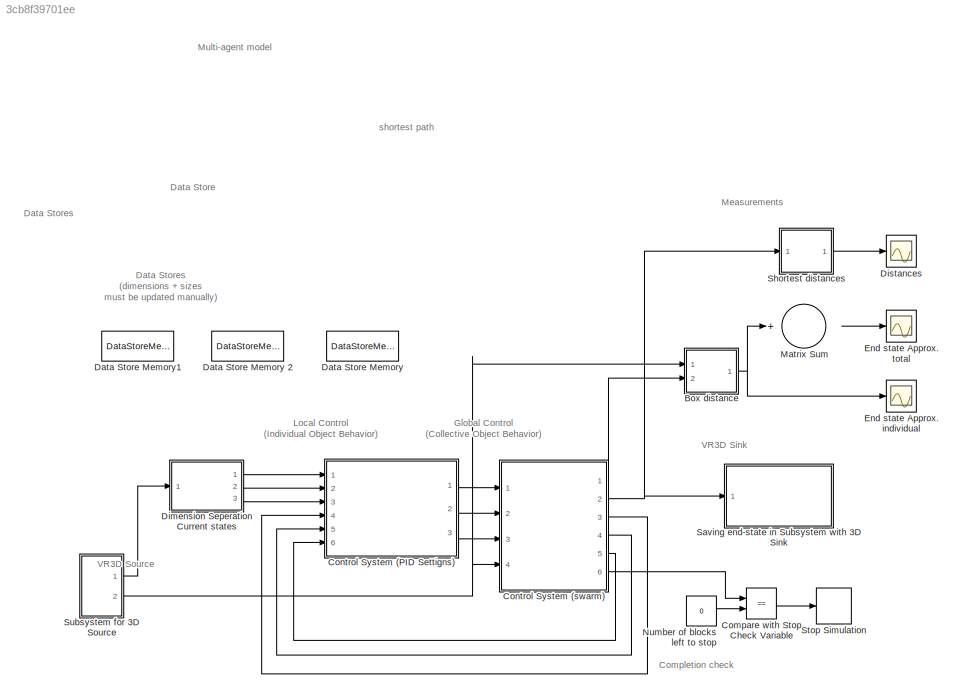
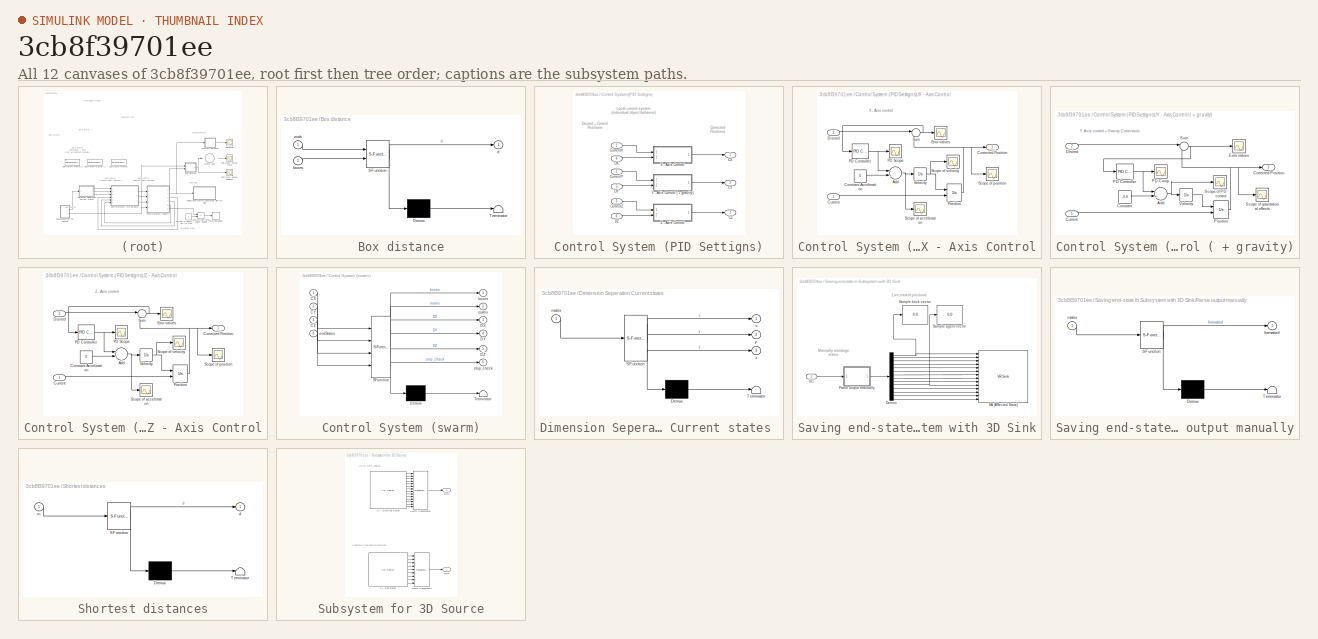
[diagram: thumbnail index - all 12 canvases of the model, root first then tree order]
MODEL slx_3cb8f39701ee
KIND model
CONFIG AbsTol = auto
CONFIG FixedStep = auto
CONFIG MaxStep = auto
CONFIG MinStep = auto
CONFIG RelTol = 1e-3
CONFIG SampleTimeConstraint = Unconstrained
CONFIG Solver = VariableStepAuto
CONFIG SolverMode = Auto
CONFIG SolverName = VariableStepAuto
CONFIG StartTime = 0.0
CONFIG StopTime = 400
WORKSPACE source: MAT-file member
WORKSPACE MCOS: class17 (value not decoded)
BLOCK [SubSystem] Box distance
  ErrorFcn = Stateflow.Translate.translate
  PermitHierarchicalResolution = ExplicitOnly
  Ports = [2, 1]
  RequestExecContextInheritance = off
  SFBlockType = MATLAB Function
  TreatAsAtomicUnit = on
  Variant = off
BLOCK [Demux] Box distance/ Demux 
  Outputs = 1
  Ports = [1, 1]
BLOCK [S-Function] Box distance/ SFunction 
  EnableBusSupport = on
  FunctionName = sf_sfun
  PortCounts = [2 2]
  Ports = [2, 2]
  SFunctionDeploymentMode = off
  Tag = Stateflow S-Function multi_agent_setup 1
BLOCK [Terminator] Box distance/ Terminator 
BLOCK [Inport] Box distance/boxes
  IconDisplay = Port number
  Port = 2
BLOCK [Outport] Box distance/d
  IconDisplay = Port number
BLOCK [Inport] Box distance/ends
  IconDisplay = Port number
BLOCK [RelationalOperator] Compare with Stop Check Variable
  InputSameDT = off
  Operator = ==
  OutDataTypeStr = boolean
  Ports = [2, 1]
BLOCK [SubSystem] Control System (PID Settigns)
  Ports = [6, 3]
  RequestExecContextInheritance = off
  Variant = off
BLOCK [Outport] Control System (PID Settigns)/CX
  IconDisplay = Port number
BLOCK [Outport] Control System (PID Settigns)/CY
  IconDisplay = Port number
  Port = 2
BLOCK [Outport] Control System (PID Settigns)/CZ
  IconDisplay = Port number
  Port = 3
BLOCK [Inport] Control System (PID Settigns)/CurrentX
  IconDisplay = Port number
BLOCK [Inport] Control System (PID Settigns)/CurrentY
  IconDisplay = Port number
  Port = 2
BLOCK [Inport] Control System (PID Settigns)/CurrentZ
  IconDisplay = Port number
  Port = 3
BLOCK [Inport] Control System (PID Settigns)/DX
  IconDisplay = Port number
  Port = 4
BLOCK [Inport] Control System (PID Settigns)/DY
  IconDisplay = Port number
  Port = 5
BLOCK [Inport] Control System (PID Settigns)/DZ
  IconDisplay = Port number
  Port = 6
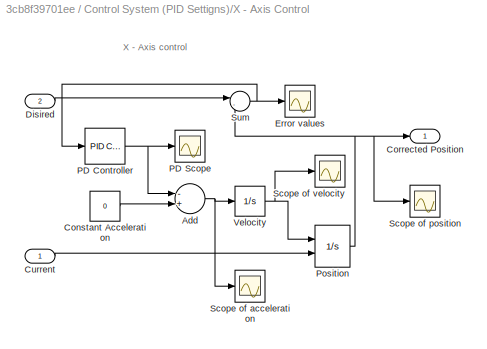
BLOCK [SubSystem] Control System (PID Settigns)/X - Axis Control
  Ports = [2, 1]
  RequestExecContextInheritance = off
  Variant = off
BLOCK [Sum] Control System (PID Settigns)/X - Axis Control/Add
  InputSameDT = off
  Inputs = -+
  OutDataTypeStr = Inherit: Inherit via internal rule
  OutMax = 5
  OutMin = -5
  Ports = [2, 1]
  SaturateOnIntegerOverflow = off
BLOCK [Constant] Control System (PID Settigns)/X - Axis Control/Constant Acceleration
  Value = 0
BLOCK [Outport] Control System (PID Settigns)/X - Axis Control/Corrected Position
  IconDisplay = Port number
BLOCK [Inport] Control System (PID Settigns)/X - Axis Control/Current
  IconDisplay = Port number
BLOCK [Inport] Control System (PID Settigns)/X - Axis Control/Disired
  IconDisplay = Port number
  Port = 2
BLOCK [Scope] Control System (PID Settigns)/X - Axis Control/Error values
  Ports = [1]
  ScopeSpecificationString = Simulink.scopes.TimeScopeBlockCfg('CurrentConfiguration', extmgr.ConfigurationSet(extmgr.Configuration('Core','General UI',true),extmgr.Configuration('Core','Source UI',true),extmgr.Configuration('Sources','WiredSimulink',true,'DataLoggingVariableName','ScopeData3'),extmgr.Configuration('Visuals','Time Domain',true,'SerializedDisplays',{struct('MinYLimReal','-24.375','MaxYLimReal','19.375','YLabel...<+1598ch>  <repeated x3 — deduplicated; at blocks: Error values>
BLOCK [Reference] Control System (PID Settigns)/X - Axis Control/PD Controller  REF=simulink/Continuous/PID Controller
  Ports = [1, 1]
  SourceBlock = simulink/Continuous/PID Controller
  SourceType = PID 1dof
BLOCK [Scope] Control System (PID Settigns)/X - Axis Control/PD Scope
  Ports = [1]
  ScopeSpecificationString = Simulink.scopes.TimeScopeBlockCfg('CurrentConfiguration', extmgr.ConfigurationSet(extmgr.Configuration('Core','General UI',true,'FigureColor',[1 1 1]),extmgr.Configuration('Core','Source UI',true),extmgr.Configuration('Sources','WiredSimulink',true,'DataLoggingVariableName','ScopeData3'),extmgr.Configuration('Visuals','Time Domain',true,'SerializedDisplays',{struct('MinYLimReal','-62.5','MaxYLimRe...<+3142ch>
BLOCK [Integrator] Control System (PID Settigns)/X - Axis Control/Position
  InitialConditionSource = external
  LowerSaturationLimit = 0
  Ports = [2, 1]
BLOCK [Scope] Control System (PID Settigns)/X - Axis Control/Scope of acceleration
  Ports = [1]
  ScopeSpecificationString = Simulink.scopes.TimeScopeBlockCfg('CurrentConfiguration', extmgr.ConfigurationSet(extmgr.Configuration('Core','General UI',true,'FigureColor',[1 1 1]),extmgr.Configuration('Core','Source UI',true),extmgr.Configuration('Sources','WiredSimulink',true,'DataLoggingVariableName','ScopeData2'),extmgr.Configuration('Visuals','Time Domain',true,'SerializedDisplays',{struct('MinYLimReal','-25.00000','MaxYL...<+3066ch>
BLOCK [Scope] Control System (PID Settigns)/X - Axis Control/Scope of position
  Ports = [1]
  ScopeSpecificationString = Simulink.scopes.TimeScopeBlockCfg('CurrentConfiguration', extmgr.ConfigurationSet(extmgr.Configuration('Core','General UI',true),extmgr.Configuration('Core','Source UI',true),extmgr.Configuration('Sources','WiredSimulink',true,'DataLoggingVariableName','ScopeData5'),extmgr.Configuration('Visuals','Time Domain',true,'SerializedDisplays',{struct('MinYLimReal','-141.20216','MaxYLimReal','135.48129','...<+1619ch>
BLOCK [Scope] Control System (PID Settigns)/X - Axis Control/Scope of velocity
  Ports = [1]
  ScopeSpecificationString = Simulink.scopes.TimeScopeBlockCfg('CurrentConfiguration', extmgr.ConfigurationSet(extmgr.Configuration('Core','General UI',true),extmgr.Configuration('Core','Source UI',true),extmgr.Configuration('Sources','WiredSimulink',true,'DataLoggingVariableName','ScopeData1'),extmgr.Configuration('Visuals','Time Domain',true,'SerializedDisplays',{struct('MinYLimReal','-18.75','MaxYLimReal','18.75','YLabelRe...<+1586ch>
BLOCK [Sum] Control System (PID Settigns)/X - Axis Control/Sum
  IconShape = round
  InputSameDT = off
  Inputs = |-+
  OutDataTypeStr = Inherit: Inherit via internal rule
  Ports = [2, 1]
  SaturateOnIntegerOverflow = off
BLOCK [Integrator] Control System (PID Settigns)/X - Axis Control/Velocity
  LimitOutput = on
  LowerSaturationLimit = -15
  Ports = [1, 1]
  UpperSaturationLimit = 15
BLOCK [SubSystem] Control System (PID Settigns)/Y - Axis Control ( + gravity)
  Ports = [2, 1]
  RequestExecContextInheritance = off
  Variant = off
BLOCK [Sum] Control System (PID Settigns)/Y - Axis Control ( + gravity)/Add
  InputSameDT = off
  Inputs = -+
  OutDataTypeStr = Inherit: Inherit via internal rule
  OutMin = [-9.8]
  Ports = [2, 1]
  SaturateOnIntegerOverflow = off
BLOCK [Constant] Control System (PID Settigns)/Y - Axis Control ( + gravity)/Constant
  Value = -9.8
BLOCK [Outport] Control System (PID Settigns)/Y - Axis Control ( + gravity)/Corrected Position
  IconDisplay = Port number
BLOCK [Inport] Control System (PID Settigns)/Y - Axis Control ( + gravity)/Current
  IconDisplay = Port number
BLOCK [Inport] Control System (PID Settigns)/Y - Axis Control ( + gravity)/Disired
  IconDisplay = Port number
  Port = 2
BLOCK [Scope] Control System (PID Settigns)/Y - Axis Control ( + gravity)/Error values
  Ports = [1]
BLOCK [Scope] Control System (PID Settigns)/Y - Axis Control ( + gravity)/PD Comp. 
  Ports = [1]
  ScopeSpecificationString = Simulink.scopes.TimeScopeBlockCfg('CurrentConfiguration', extmgr.ConfigurationSet(extmgr.Configuration('Core','General UI',true),extmgr.Configuration('Core','Source UI',true),extmgr.Configuration('Sources','WiredSimulink',true,'DataLoggingVariableName','ScopeData4'),extmgr.Configuration('Visuals','Time Domain',true,'SerializedDisplays',{struct('MinYLimReal','-24.375','MaxYLimReal','19.375','YLabel...<+1674ch>
BLOCK [Reference] Control System (PID Settigns)/Y - Axis Control ( + gravity)/PD Controller  REF=simulink/Continuous/PID Controller
  Ports = [1, 1]
  SourceBlock = simulink/Continuous/PID Controller
  SourceType = PID 1dof
BLOCK [Integrator] Control System (PID Settigns)/Y - Axis Control ( + gravity)/Position
  InitialConditionSource = external
  LimitOutput = on
  LowerSaturationLimit = 0
  Ports = [2, 1]
BLOCK [Scope] Control System (PID Settigns)/Y - Axis Control ( + gravity)/Scope of PD control
  Ports = [1]
  ScopeSpecificationString = Simulink.scopes.TimeScopeBlockCfg('CurrentConfiguration', extmgr.ConfigurationSet(extmgr.Configuration('Core','General UI',true),extmgr.Configuration('Core','Source UI',true),extmgr.Configuration('Sources','WiredSimulink',true,'DataLoggingVariableName','ScopeData2'),extmgr.Configuration('Visuals','Time Domain',true,'SerializedDisplays',{struct('MinYLimReal','-6709.20258','MaxYLimReal','834.82319',...<+1600ch>
BLOCK [Scope] Control System (PID Settigns)/Y - Axis Control ( + gravity)/Scope of gravitational effects 
  Ports = [1]
  ScopeSpecificationString = Simulink.scopes.TimeScopeBlockCfg('CurrentConfiguration', extmgr.ConfigurationSet(extmgr.Configuration('Core','General UI',true,'FigureColor',[1 1 1]),extmgr.Configuration('Core','Source UI',true),extmgr.Configuration('Sources','WiredSimulink',true,'DataLoggingVariableName','ScopeData5'),extmgr.Configuration('Visuals','Time Domain',true,'SerializedDisplays',{struct('MinYLimReal','-4.16407','MaxYLi...<+1751ch>
BLOCK [Sum] Control System (PID Settigns)/Y - Axis Control ( + gravity)/Sum
  IconShape = round
  InputSameDT = off
  Inputs = |-+
  OutDataTypeStr = Inherit: Inherit via internal rule
  Ports = [2, 1]
  SaturateOnIntegerOverflow = off
BLOCK [Integrator] Control System (PID Settigns)/Y - Axis Control ( + gravity)/Velocity
  Ports = [1, 1]
BLOCK [SubSystem] Control System (PID Settigns)/Z - Axis Control
  Ports = [2, 1]
  RequestExecContextInheritance = off
  Variant = off
BLOCK [Sum] Control System (PID Settigns)/Z - Axis Control/Add
  InputSameDT = off
  Inputs = -+
  OutDataTypeStr = Inherit: Inherit via internal rule
  OutMax = 5
  OutMin = -5
  Ports = [2, 1]
  SaturateOnIntegerOverflow = off
BLOCK [Constant] Control System (PID Settigns)/Z - Axis Control/Constant Acceleration
  Value = 0
BLOCK [Outport] Control System (PID Settigns)/Z - Axis Control/Corrected Position
  IconDisplay = Port number
BLOCK [Inport] Control System (PID Settigns)/Z - Axis Control/Current
  IconDisplay = Port number
BLOCK [Inport] Control System (PID Settigns)/Z - Axis Control/Disired
  IconDisplay = Port number
  Port = 2
BLOCK [Scope] Control System (PID Settigns)/Z - Axis Control/Error values
  Ports = [1]
BLOCK [Reference] Control System (PID Settigns)/Z - Axis Control/PD Controller  REF=simulink/Continuous/PID Controller
  Ports = [1, 1]
  SourceBlock = simulink/Continuous/PID Controller
  SourceType = PID 1dof
BLOCK [Scope] Control System (PID Settigns)/Z - Axis Control/PD Scope
  Ports = [1]
  ScopeSpecificationString = Simulink.scopes.TimeScopeBlockCfg('CurrentConfiguration', extmgr.ConfigurationSet(extmgr.Configuration('Core','General UI',true,'FigureColor',[1 1 1]),extmgr.Configuration('Core','Source UI',true),extmgr.Configuration('Sources','WiredSimulink',true,'DataLoggingVariableName','ScopeData3'),extmgr.Configuration('Visuals','Time Domain',true,'SerializedDisplays',{struct('MinYLimReal','-62.5','MaxYLimRe...<+3142ch>
BLOCK [Integrator] Control System (PID Settigns)/Z - Axis Control/Position
  InitialConditionSource = external
  LowerSaturationLimit = 0
  Ports = [2, 1]
BLOCK [Scope] Control System (PID Settigns)/Z - Axis Control/Scope of acceleration
  Ports = [1]
  ScopeSpecificationString = Simulink.scopes.TimeScopeBlockCfg('CurrentConfiguration', extmgr.ConfigurationSet(extmgr.Configuration('Core','General UI',true,'FigureColor',[1 1 1]),extmgr.Configuration('Core','Source UI',true),extmgr.Configuration('Sources','WiredSimulink',true,'DataLoggingVariableName','ScopeData2'),extmgr.Configuration('Visuals','Time Domain',true,'SerializedDisplays',{struct('MinYLimReal','-25.00000','MaxYL...<+3066ch>
BLOCK [Scope] Control System (PID Settigns)/Z - Axis Control/Scope of position
  Ports = [1]
  ScopeSpecificationString = Simulink.scopes.TimeScopeBlockCfg('CurrentConfiguration', extmgr.ConfigurationSet(extmgr.Configuration('Core','General UI',true),extmgr.Configuration('Core','Source UI',true),extmgr.Configuration('Sources','WiredSimulink',true,'DataLoggingVariableName','ScopeData5'),extmgr.Configuration('Visuals','Time Domain',true,'SerializedDisplays',{struct('MinYLimReal','-141.20216','MaxYLimReal','135.48129','...<+1619ch>
BLOCK [Scope] Control System (PID Settigns)/Z - Axis Control/Scope of velocity
  Ports = [1]
  ScopeSpecificationString = Simulink.scopes.TimeScopeBlockCfg('CurrentConfiguration', extmgr.ConfigurationSet(extmgr.Configuration('Core','General UI',true),extmgr.Configuration('Core','Source UI',true),extmgr.Configuration('Sources','WiredSimulink',true,'DataLoggingVariableName','ScopeData1'),extmgr.Configuration('Visuals','Time Domain',true,'SerializedDisplays',{struct('MinYLimReal','-5.89094','MaxYLimReal','5.89143','YLab...<+1542ch>
BLOCK [Sum] Control System (PID Settigns)/Z - Axis Control/Sum
  IconShape = round
  InputSameDT = off
  Inputs = |-+
  OutDataTypeStr = Inherit: Inherit via internal rule
  Ports = [2, 1]
  SaturateOnIntegerOverflow = off
BLOCK [Integrator] Control System (PID Settigns)/Z - Axis Control/Velocity
  LimitOutput = on
  LowerSaturationLimit = -15
  Ports = [1, 1]
  UpperSaturationLimit = 15
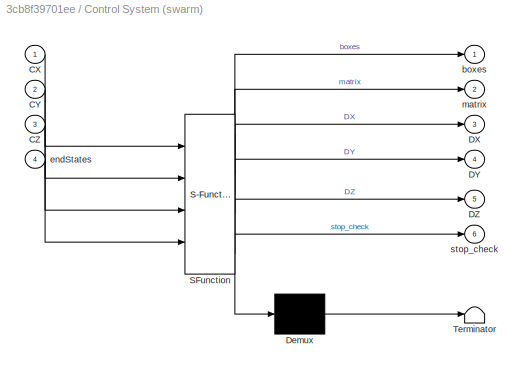
BLOCK [SubSystem] Control System (swarm)
  ErrorFcn = Stateflow.Translate.translate
  PermitHierarchicalResolution = ExplicitOnly
  Ports = [4, 6]
  RequestExecContextInheritance = off
  SFBlockType = MATLAB Function
  Variant = off
BLOCK [Demux] Control System (swarm)/ Demux 
  Outputs = 1
  Ports = [1, 1]
BLOCK [S-Function] Control System (swarm)/ SFunction 
  EnableBusSupport = on
  FunctionName = sf_sfun
  PortCounts = [4 7]
  Ports = [4, 7]
  SFunctionDeploymentMode = off
  Tag = Stateflow S-Function multi_agent_setup 5
BLOCK [Terminator] Control System (swarm)/ Terminator 
BLOCK [Inport] Control System (swarm)/CX
  IconDisplay = Port number
BLOCK [Inport] Control System (swarm)/CY
  IconDisplay = Port number
  Port = 2
BLOCK [Inport] Control System (swarm)/CZ
  IconDisplay = Port number
  Port = 3
BLOCK [Outport] Control System (swarm)/DX
  IconDisplay = Port number
  Port = 3
BLOCK [Outport] Control System (swarm)/DY
  IconDisplay = Port number
  Port = 4
BLOCK [Outport] Control System (swarm)/DZ
  IconDisplay = Port number
  Port = 5
BLOCK [Outport] Control System (swarm)/boxes
  IconDisplay = Port number
BLOCK [Inport] Control System (swarm)/endStates
  IconDisplay = Port number
  Port = 4
BLOCK [Outport] Control System (swarm)/matrix
  IconDisplay = Port number
  Port = 2
BLOCK [Outport] Control System (swarm)/stop_check
  IconDisplay = Port number
  Port = 6
BLOCK [DataStoreMemory] Data Store Memory
  DataStoreName = agent_signal
  InitialValue = [-1, -1, -1, -1, -1;-1, -1, -1, -1, -1]
  OutDataTypeStr = double
  ReadBeforeWriteMsg = warning
  ShowAdditionalParam = off
  SignalType = real
  VectorParams1D = off
  WriteAfterReadMsg = warning
  WriteAfterWriteMsg = warning
BLOCK [DataStoreMemory] Data Store Memory 2
  DataStoreName = goal_signal
  InitialValue = [0, 0, 0, 0, 0, 0, 0, 0, 0]
  OutDataTypeStr = double
  ReadBeforeWriteMsg = warning
  ShowAdditionalParam = off
  SignalType = real
  VectorParams1D = off
  WriteAfterReadMsg = warning
  WriteAfterWriteMsg = warning
BLOCK [DataStoreMemory] Data Store Memory1
  DataStoreName = status_signal
  InitialValue = [0,0,0,0,0,0,0,0,0;0,0,0,0,0,0,0,0,0]
  OutDataTypeStr = double
  ReadBeforeWriteMsg = warning
  ShowAdditionalParam = off
  SignalType = real
  VectorParams1D = off
  WriteAfterReadMsg = warning
  WriteAfterWriteMsg = warning
BLOCK [SubSystem] Dimension Seperation Current states 
  ErrorFcn = Stateflow.Translate.translate
  PermitHierarchicalResolution = ExplicitOnly
  Ports = [1, 3]
  RequestExecContextInheritance = off
  SFBlockType = MATLAB Function
  TreatAsAtomicUnit = on
  Variant = off
BLOCK [Demux] Dimension Seperation Current states / Demux 
  Outputs = 1
  Ports = [1, 1]
BLOCK [S-Function] Dimension Seperation Current states / SFunction 
  EnableBusSupport = on
  FunctionName = sf_sfun
  PortCounts = [1 4]
  Ports = [1, 4]
  SFunctionDeploymentMode = off
  Tag = Stateflow S-Function multi_agent_setup 4
BLOCK [Terminator] Dimension Seperation Current states / Terminator 
BLOCK [Inport] Dimension Seperation Current states /matrix
  IconDisplay = Port number
BLOCK [Outport] Dimension Seperation Current states /x
  IconDisplay = Port number
BLOCK [Outport] Dimension Seperation Current states /y
  IconDisplay = Port number
  Port = 2
BLOCK [Outport] Dimension Seperation Current states /z
  IconDisplay = Port number
  Port = 3
BLOCK [Scope] Distances
  Ports = [1]
  ScopeSpecificationString = Simulink.scopes.TimeScopeBlockCfg('CurrentConfiguration', extmgr.ConfigurationSet(extmgr.Configuration('Core','General UI',true,'FigureColor',[1 1 1]),extmgr.Configuration('Core','Source UI',true),extmgr.Configuration('Sources','WiredSimulink',true,'DataLoggingVariableName','ScopeData4'),extmgr.Configuration('Visuals','Time Domain',true,'SerializedDisplays',{struct('MinYLimReal','-4.08717','MaxYLi...<+2554ch>
BLOCK [Scope] End state Approx. individual
  Ports = [1]
  ScopeSpecificationString = Simulink.scopes.TimeScopeBlockCfg('CurrentConfiguration', extmgr.ConfigurationSet(extmgr.Configuration('Core','General UI',true,'FigureColor',[1 1 1]),extmgr.Configuration('Core','Source UI',true),extmgr.Configuration('Sources','WiredSimulink',true,'DataLoggingVariableName','ScopeData3'),extmgr.Configuration('Visuals','Time Domain',true,'PlotType','Line','SerializedDisplays',{struct('MinYLimReal',...<+1902ch>
BLOCK [Scope] End state Approx. total
  Ports = [1]
  ScopeSpecificationString = Simulink.scopes.TimeScopeBlockCfg('CurrentConfiguration', extmgr.ConfigurationSet(extmgr.Configuration('Core','General UI',true,'FigureColor',[1 1 1]),extmgr.Configuration('Core','Source UI',true),extmgr.Configuration('Sources','WiredSimulink',true,'DataLoggingVariableName','ScopeData2'),extmgr.Configuration('Visuals','Time Domain',true,'SerializedDisplays',{struct('MinYLimReal','-235.37413','MaxY...<+1777ch>
BLOCK [Sum] Matrix Sum
  InputSameDT = off
  Inputs = +
  OutDataTypeStr = Inherit: Inherit via internal rule
  Ports = [1, 1]
  SaturateOnIntegerOverflow = off
BLOCK [Constant] Number of blocks left to stop
  Value = 0
BLOCK [SubSystem] Saving end-state in Subsystem with 3D Sink
  Ports = [1]
  RequestExecContextInheritance = off
  Variant = off
BLOCK [Demux] Saving end-state in Subsystem with 3D Sink/Demux
  DisplayOption = bar
  Outputs = 14
  Ports = [1, 14]
BLOCK [Inport] Saving end-state in Subsystem with 3D Sink/In1
  IconDisplay = Port number
BLOCK [SubSystem] Saving end-state in Subsystem with 3D Sink/Parse output manually
  ErrorFcn = Stateflow.Translate.translate
  PermitHierarchicalResolution = ExplicitOnly
  Ports = [1, 1]
  RequestExecContextInheritance = off
  SFBlockType = MATLAB Function
  TreatAsAtomicUnit = on
  Variant = off
BLOCK [Demux] Saving end-state in Subsystem with 3D Sink/Parse output manually/ Demux 
  Outputs = 1
  Ports = [1, 1]
BLOCK [S-Function] Saving end-state in Subsystem with 3D Sink/Parse output manually/ SFunction 
  EnableBusSupport = on
  FunctionName = sf_sfun
  PortCounts = [1 2]
  Ports = [1, 2]
  SFunctionDeploymentMode = off
  Tag = Stateflow S-Function multi_agent_setup 6
BLOCK [Terminator] Saving end-state in Subsystem with 3D Sink/Parse output manually/ Terminator 
BLOCK [Outport] Saving end-state in Subsystem with 3D Sink/Parse output manually/formatted
  IconDisplay = Port number
BLOCK [Inport] Saving end-state in Subsystem with 3D Sink/Parse output manually/matrix
  IconDisplay = Port number
BLOCK [Reference] Saving end-state in Subsystem with 3D Sink/SA (Affected State)   REF=vrlib/VR Sink
  InstantiateOnLoad = on
  Ports = [14]
  SourceBlock = vrlib/VR Sink
  SourceType = Virtual Reality Sink
BLOCK [Display] Saving end-state in Subsystem with 3D Sink/Sample agent vector
  Decimation = 1
  Ports = [1]
BLOCK [Display] Saving end-state in Subsystem with 3D Sink/Sample brick vector 
  Decimation = 1
  Ports = [1]
BLOCK [SubSystem] Shortest distances
  ErrorFcn = Stateflow.Translate.translate
  PermitHierarchicalResolution = ExplicitOnly
  Ports = [1, 1]
  RequestExecContextInheritance = off
  SFBlockType = MATLAB Function
  TreatAsAtomicUnit = on
  Variant = off
BLOCK [Demux] Shortest distances/ Demux 
  Outputs = 1
  Ports = [1, 1]
BLOCK [S-Function] Shortest distances/ SFunction 
  EnableBusSupport = on
  FunctionName = sf_sfun
  PortCounts = [1 2]
  Ports = [1, 2]
  SFunctionDeploymentMode = off
  Tag = Stateflow S-Function multi_agent_setup 2
BLOCK [Terminator] Shortest distances/ Terminator 
BLOCK [Outport] Shortest distances/d
  IconDisplay = Port number
BLOCK [Inport] Shortest distances/m
  IconDisplay = Port number
BLOCK [Stop] Stop Simulation
BLOCK [SubSystem] Subsystem for 3D Source
  Ports = [0, 2]
  RequestExecContextInheritance = off
  Variant = off
BLOCK [Outport] Subsystem for 3D Source/Out1
  IconDisplay = Port number
BLOCK [Outport] Subsystem for 3D Source/Out3
  IconDisplay = Port number
  Port = 2
BLOCK [Reference] Subsystem for 3D Source/SA (Starting Setup)  REF=vrlib/VR Source
  InstantiateOnLoad = on
  Ports = [0, 14]
  SourceBlock = vrlib/VR Source
  SourceType = Virtual Reality Source
BLOCK [Reference] Subsystem for 3D Source/SA End states   REF=vrlib/VR Source
  InstantiateOnLoad = on
  Ports = [0, 9]
  SourceBlock = vrlib/VR Source
  SourceType = Virtual Reality Source
BLOCK [Concatenate] Subsystem for 3D Source/Vector Concatenate
  ConcatenateDimension = 2
  Mode = Multidimensional array
  NumInputs = 14
  Ports = [14, 1]
BLOCK [Concatenate] Subsystem for 3D Source/Vector Concatenate 
  ConcatenateDimension = 2
  Mode = Multidimensional array
  NumInputs = 9
  Ports = [9, 1]
ANNOTATION (root): Global Control ( Collective Object Behavior)
ANNOTATION (root): Local Control ( Individual Object Behavior)
ANNOTATION (root): Completion check
ANNOTATION (root): Data Store
ANNOTATION (root): Data Stores (dimensions + sizes must be updated manually)
ANNOTATION (root): Measurements
ANNOTATION (root): VR3D Sink
ANNOTATION (root): VR3D Source
ANNOTATION (root): shortest path
ANNOTATION (root): Multi-agent model
ANNOTATION (root): Data Stores
ANNOTATION Control System (PID Settigns): Local control system (individual object behavior)
ANNOTATION Control System (PID Settigns): Corrected Positions
ANNOTATION Control System (PID Settigns): Disired + Current Positions
ANNOTATION Control System (PID Settigns)/X - Axis Control: X - Axis control
ANNOTATION Control System (PID Settigns)/Y - Axis Control ( + gravity): Y Axis control + Gravity Corrections
ANNOTATION Control System (PID Settigns)/Z - Axis Control: Z - Axis control
ANNOTATION Saving end-state in Subsystem with 3D Sink: Live view of positions
ANNOTATION Saving end-state in Subsystem with 3D Sink: Manually rearrange matrix
ANNOTATION Subsystem for 3D Source: Initial state loading
ANNOTATION Subsystem for 3D Source: Seperately load desired end-state
NET Box distance:1 -> End state Approx. individual:1, Matrix Sum:1
LINE Compare with Stop Check Variable:1 -> Stop Simulation:1
LINE Control System (PID Settigns)/CurrentX:1 -> Control System (PID Settigns)/X - Axis Control:1
LINE Control System (PID Settigns)/CurrentY:1 -> Control System (PID Settigns)/Y - Axis Control ( + gravity):1
LINE Control System (PID Settigns)/CurrentZ:1 -> Control System (PID Settigns)/Z - Axis Control:1
LINE Control System (PID Settigns)/DX:1 -> Control System (PID Settigns)/X - Axis Control:2
LINE Control System (PID Settigns)/DY:1 -> Control System (PID Settigns)/Y - Axis Control ( + gravity):2
LINE Control System (PID Settigns)/DZ:1 -> Control System (PID Settigns)/Z - Axis Control:2
NET Control System (PID Settigns)/X - Axis Control/Add:1 -> Control System (PID Settigns)/X - Axis Control/Scope of acceleration:1, Control System (PID Settigns)/X - Axis Control/Velocity:1
LINE Control System (PID Settigns)/X - Axis Control/Constant Acceleration:1 -> Control System (PID Settigns)/X - Axis Control/Add:2
LINE Control System (PID Settigns)/X - Axis Control/Current:1 -> Control System (PID Settigns)/X - Axis Control/Position:2
LINE Control System (PID Settigns)/X - Axis Control/Disired:1 -> Control System (PID Settigns)/X - Axis Control/Sum:1
NET Control System (PID Settigns)/X - Axis Control/PD Controller:1 -> Control System (PID Settigns)/X - Axis Control/Add:1, Control System (PID Settigns)/X - Axis Control/PD Scope:1
NET Control System (PID Settigns)/X - Axis Control/Position:1 -> Control System (PID Settigns)/X - Axis Control/Corrected Position:1, Control System (PID Settigns)/X - Axis Control/Scope of position:1, Control System (PID Settigns)/X - Axis Control/Sum:2
NET Control System (PID Settigns)/X - Axis Control/Sum:1 -> Control System (PID Settigns)/X - Axis Control/Error values:1, Control System (PID Settigns)/X - Axis Control/PD Controller:1
NET Control System (PID Settigns)/X - Axis Control/Velocity:1 -> Control System (PID Settigns)/X - Axis Control/Position:1, Control System (PID Settigns)/X - Axis Control/Scope of velocity:1
LINE Control System (PID Settigns)/X - Axis Control:1 -> Control System (PID Settigns)/CX:1
NET Control System (PID Settigns)/Y - Axis Control ( + gravity)/Add:1 -> Control System (PID Settigns)/Y - Axis Control ( + gravity)/Scope of PD control:1, Control System (PID Settigns)/Y - Axis Control ( + gravity)/Velocity:1
LINE Control System (PID Settigns)/Y - Axis Control ( + gravity)/Constant:1 -> Control System (PID Settigns)/Y - Axis Control ( + gravity)/Add:2
LINE Control System (PID Settigns)/Y - Axis Control ( + gravity)/Current:1 -> Control System (PID Settigns)/Y - Axis Control ( + gravity)/Position:2
LINE Control System (PID Settigns)/Y - Axis Control ( + gravity)/Disired:1 -> Control System (PID Settigns)/Y - Axis Control ( + gravity)/Sum:1
NET Control System (PID Settigns)/Y - Axis Control ( + gravity)/PD Controller:1 -> Control System (PID Settigns)/Y - Axis Control ( + gravity)/Add:1, Control System (PID Settigns)/Y - Axis Control ( + gravity)/PD Comp. :1
NET Control System (PID Settigns)/Y - Axis Control ( + gravity)/Position:1 -> Control System (PID Settigns)/Y - Axis Control ( + gravity)/Corrected Position:1, Control System (PID Settigns)/Y - Axis Control ( + gravity)/Scope of gravitational effects :1, Control System (PID Settigns)/Y - Axis Control ( + gravity)/Sum:2
NET Control System (PID Settigns)/Y - Axis Control ( + gravity)/Sum:1 -> Control System (PID Settigns)/Y - Axis Control ( + gravity)/Error values:1, Control System (PID Settigns)/Y - Axis Control ( + gravity)/PD Controller:1
LINE Control System (PID Settigns)/Y - Axis Control ( + gravity)/Velocity:1 -> Control System (PID Settigns)/Y - Axis Control ( + gravity)/Position:1
LINE Control System (PID Settigns)/Y - Axis Control ( + gravity):1 -> Control System (PID Settigns)/CY:1
NET Control System (PID Settigns)/Z - Axis Control/Add:1 -> Control System (PID Settigns)/Z - Axis Control/Scope of acceleration:1, Control System (PID Settigns)/Z - Axis Control/Velocity:1
LINE Control System (PID Settigns)/Z - Axis Control/Constant Acceleration:1 -> Control System (PID Settigns)/Z - Axis Control/Add:2
LINE Control System (PID Settigns)/Z - Axis Control/Current:1 -> Control System (PID Settigns)/Z - Axis Control/Position:2
LINE Control System (PID Settigns)/Z - Axis Control/Disired:1 -> Control System (PID Settigns)/Z - Axis Control/Sum:1
NET Control System (PID Settigns)/Z - Axis Control/PD Controller:1 -> Control System (PID Settigns)/Z - Axis Control/Add:1, Control System (PID Settigns)/Z - Axis Control/PD Scope:1
NET Control System (PID Settigns)/Z - Axis Control/Position:1 -> Control System (PID Settigns)/Z - Axis Control/Corrected Position:1, Control System (PID Settigns)/Z - Axis Control/Scope of position:1, Control System (PID Settigns)/Z - Axis Control/Sum:2
NET Control System (PID Settigns)/Z - Axis Control/Sum:1 -> Control System (PID Settigns)/Z - Axis Control/Error values:1, Control System (PID Settigns)/Z - Axis Control/PD Controller:1
NET Control System (PID Settigns)/Z - Axis Control/Velocity:1 -> Control System (PID Settigns)/Z - Axis Control/Position:1, Control System (PID Settigns)/Z - Axis Control/Scope of velocity:1
LINE Control System (PID Settigns)/Z - Axis Control:1 -> Control System (PID Settigns)/CZ:1
LINE Control System (PID Settigns):1 -> Control System (swarm):1
LINE Control System (PID Settigns):2 -> Control System (swarm):2
LINE Control System (PID Settigns):3 -> Control System (swarm):3
LINE Control System (swarm):1 -> Box distance:2
NET Control System (swarm):2 -> Saving end-state in Subsystem with 3D Sink:1, Shortest distances:1
LINE Control System (swarm):3 -> Control System (PID Settigns):4
LINE Control System (swarm):4 -> Control System (PID Settigns):5
LINE Control System (swarm):5 -> Control System (PID Settigns):6
LINE Control System (swarm):6 -> Compare with Stop Check Variable:1
LINE Dimension Seperation Current states :1 -> Control System (PID Settigns):1
LINE Dimension Seperation Current states :2 -> Control System (PID Settigns):2
LINE Dimension Seperation Current states :3 -> Control System (PID Settigns):3
LINE Matrix Sum:1 -> End state Approx. total:1
LINE Number of blocks left to stop:1 -> Compare with Stop Check Variable:2
NET Saving end-state in Subsystem with 3D Sink/Demux:1 -> Saving end-state in Subsystem with 3D Sink/SA (Affected State) :1, Saving end-state in Subsystem with 3D Sink/Sample brick vector :1
NET Saving end-state in Subsystem with 3D Sink/Demux:10 -> Saving end-state in Subsystem with 3D Sink/SA (Affected State) :10, Saving end-state in Subsystem with 3D Sink/Sample agent vector:1
LINE Saving end-state in Subsystem with 3D Sink/Demux:11 -> Saving end-state in Subsystem with 3D Sink/SA (Affected State) :11
LINE Saving end-state in Subsystem with 3D Sink/Demux:12 -> Saving end-state in Subsystem with 3D Sink/SA (Affected State) :12
LINE Saving end-state in Subsystem with 3D Sink/Demux:13 -> Saving end-state in Subsystem with 3D Sink/SA (Affected State) :13
LINE Saving end-state in Subsystem with 3D Sink/Demux:14 -> Saving end-state in Subsystem with 3D Sink/SA (Affected State) :14
LINE Saving end-state in Subsystem with 3D Sink/Demux:2 -> Saving end-state in Subsystem with 3D Sink/SA (Affected State) :2
LINE Saving end-state in Subsystem with 3D Sink/Demux:3 -> Saving end-state in Subsystem with 3D Sink/SA (Affected State) :3
LINE Saving end-state in Subsystem with 3D Sink/Demux:4 -> Saving end-state in Subsystem with 3D Sink/SA (Affected State) :4
LINE Saving end-state in Subsystem with 3D Sink/Demux:5 -> Saving end-state in Subsystem with 3D Sink/SA (Affected State) :5
LINE Saving end-state in Subsystem with 3D Sink/Demux:6 -> Saving end-state in Subsystem with 3D Sink/SA (Affected State) :6
LINE Saving end-state in Subsystem with 3D Sink/Demux:7 -> Saving end-state in Subsystem with 3D Sink/SA (Affected State) :7
LINE Saving end-state in Subsystem with 3D Sink/Demux:8 -> Saving end-state in Subsystem with 3D Sink/SA (Affected State) :8
LINE Saving end-state in Subsystem with 3D Sink/Demux:9 -> Saving end-state in Subsystem with 3D Sink/SA (Affected State) :9
LINE Saving end-state in Subsystem with 3D Sink/In1:1 -> Saving end-state in Subsystem with 3D Sink/Parse output manually:1
LINE Saving end-state in Subsystem with 3D Sink/Parse output manually:1 -> Saving end-state in Subsystem with 3D Sink/Demux:1
LINE Shortest distances:1 -> Distances:1
LINE Subsystem for 3D Source/SA (Starting Setup):1 -> Subsystem for 3D Source/Vector Concatenate:1
LINE Subsystem for 3D Source/SA (Starting Setup):10 -> Subsystem for 3D Source/Vector Concatenate:10
LINE Subsystem for 3D Source/SA (Starting Setup):11 -> Subsystem for 3D Source/Vector Concatenate:11
LINE Subsystem for 3D Source/SA (Starting Setup):12 -> Subsystem for 3D Source/Vector Concatenate:12
LINE Subsystem for 3D Source/SA (Starting Setup):13 -> Subsystem for 3D Source/Vector Concatenate:13
LINE Subsystem for 3D Source/SA (Starting Setup):14 -> Subsystem for 3D Source/Vector Concatenate:14
LINE Subsystem for 3D Source/SA (Starting Setup):2 -> Subsystem for 3D Source/Vector Concatenate:2
LINE Subsystem for 3D Source/SA (Starting Setup):3 -> Subsystem for 3D Source/Vector Concatenate:3
LINE Subsystem for 3D Source/SA (Starting Setup):4 -> Subsystem for 3D Source/Vector Concatenate:4
LINE Subsystem for 3D Source/SA (Starting Setup):5 -> Subsystem for 3D Source/Vector Concatenate:5
LINE Subsystem for 3D Source/SA (Starting Setup):6 -> Subsystem for 3D Source/Vector Concatenate:6
LINE Subsystem for 3D Source/SA (Starting Setup):7 -> Subsystem for 3D Source/Vector Concatenate:7
LINE Subsystem for 3D Source/SA (Starting Setup):8 -> Subsystem for 3D Source/Vector Concatenate:8
LINE Subsystem for 3D Source/SA (Starting Setup):9 -> Subsystem for 3D Source/Vector Concatenate:9
LINE Subsystem for 3D Source/SA End states :1 -> Subsystem for 3D Source/Vector Concatenate :1
LINE Subsystem for 3D Source/SA End states :2 -> Subsystem for 3D Source/Vector Concatenate :2
LINE Subsystem for 3D Source/SA End states :3 -> Subsystem for 3D Source/Vector Concatenate :3
LINE Subsystem for 3D Source/SA End states :4 -> Subsystem for 3D Source/Vector Concatenate :4
LINE Subsystem for 3D Source/SA End states :5 -> Subsystem for 3D Source/Vector Concatenate :5
LINE Subsystem for 3D Source/SA End states :6 -> Subsystem for 3D Source/Vector Concatenate :6
LINE Subsystem for 3D Source/SA End states :7 -> Subsystem for 3D Source/Vector Concatenate :7
LINE Subsystem for 3D Source/SA End states :8 -> Subsystem for 3D Source/Vector Concatenate :8
LINE Subsystem for 3D Source/SA End states :9 -> Subsystem for 3D Source/Vector Concatenate :9
LINE Subsystem for 3D Source/Vector Concatenate :1 -> Subsystem for 3D Source/Out3:1
LINE Subsystem for 3D Source/Vector Concatenate:1 -> Subsystem for 3D Source/Out1:1
LINE Subsystem for 3D Source:1 -> Dimension Seperation Current states :1
NET Subsystem for 3D Source:2 -> Box distance:1, Control System (swarm):4
note: NET lines group one-source signal fan-out (src -> all destinations, sorted); 1:1 wires keep LINE
CHART Box distance states=1 transitions=1
  STATE_LABEL 'eML_blk_kernel()'
  STATE_LABEL 'SCRIPT:\nfunction d = dist(ends, boxes)\n%#codegen\n\n\n    distance = zeros(1,length(ends));\n\n    \n    for i=1:length(ends)\n        this_vec = abs(ends(:,i) - boxes(:,i));\n        this_dist = norm(this_vec);\n        distance(1, i) = this_dist;\n    end\n    \nd = distance;'
CHART Shortest distances states=1 transitions=1
  STATE_LABEL 'eML_blk_kernel()'
  STATE_LABEL 'SCRIPT:\nfunction d = dist(m)\n%#codegen\n\n\n% This function is used to calculate the shortest distance from\n% the agents and blocks to other agents or blocks\n\n    distance_threshold = 15;\n\n    % Matrix to hold distance\n    matrix = m(:,10:end);\n    distance = zeros(1,length(matrix(1,:))+1);\n    distance(1,end) = distance_threshold;\n    \n    % Compute Euclidian distance to nearest object\n    for i=1:l...<+505ch>'
CHART Dimension Seperation
Current states
 states=1 transitions=1
  STATE_LABEL 'eML_blk_kernel()'
  STATE_LABEL 'SCRIPT:\n\nfunction [x,y,z] =  fun(matrix)\n    x = matrix(1,:)\n    y = matrix(2,:)\n    z = matrix(3,:)\n    '
CHART Control System
(swarm) states=1 transitions=1
  STATE_LABEL 'eML_blk_kernel()'
  STATE_LABEL 'SCRIPT:\nfunction [boxes, matrix, DX, DY, DZ, stop_check] = fcn(CX, CY, CZ, endStates)\n%#codegen\n\n    % Constants \n    block_height = 6;\n    block_width = 10;\n    agents_at = [10, 11, 12, 13, 14]; % Denotes the indices of the agents\n    threshold = 2;\n        \n    % Variables\n    % (Status of box, status of goal)\n    % 0: nothing, 1:moving, 2:completed\n    global status_signal;\n    blocks_moving_to...<+3608ch>'
CHART Saving end-state in 
Subsystem with 3D Sink/Parse output
manually states=1 transitions=1
  STATE_LABEL 'eML_blk_kernel()'
  STATE_LABEL 'SCRIPT:\nfunction formatted = fcn(matrix)\n%#codegen\n\nformatted = [\n    matrix(:,1)\n    matrix(:,2)\n    matrix(:,3)\n    matrix(:,4)\n    matrix(:,5)\n    matrix(:,6)\n    matrix(:,7)\n    matrix(:,8)\n    matrix(:,9)\n    matrix(:,10)\n    matrix(:,11)\n    matrix(:,12)\n    matrix(:,13)\n    matrix(:,14)\n];'
